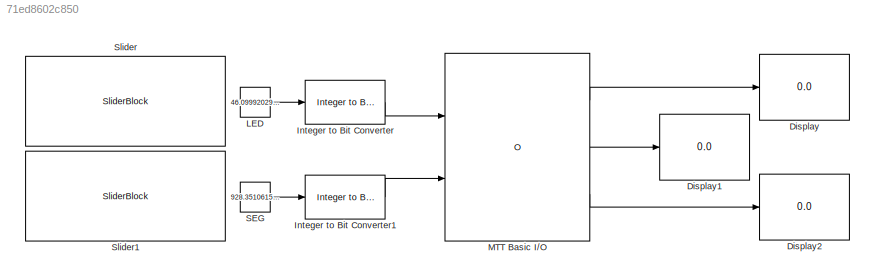
MODEL slx_71ed8602c850
KIND model
CONFIG AbsTol = auto
CONFIG EnableMultiTasking = off
CONFIG FixedStep = auto
CONFIG MaxStep = auto
CONFIG MinStep = auto
CONFIG RelTol = 1e-3
CONFIG SampleTimeConstraint = Unconstrained
CONFIG SolverName = FixedStepAuto
CONFIG StartTime = 0.0
CONFIG StopTime = inf
BLOCK [Display] Display
  Decimation = 1
  Ports = [1]
BLOCK [Display] Display1
  Decimation = 1
  Ports = [1]
BLOCK [Display] Display2
  Decimation = 1
  Ports = [1]
BLOCK [Reference] Integer to Bit Converter  REF=simulink/Logic and Bit
Operations/Integer to Bit
Converter
  Ports = [1, 1]
  SourceBlock = simulink/Logic and Bit\nOperations/Integer to Bit\nConverter
  SourceProductBaseCode = SL
  SourceType = Integer to Bit Converter
BLOCK [Reference] Integer to Bit Converter1  REF=simulink/Logic and Bit
Operations/Integer to Bit
Converter
  Ports = [1, 1]
  SourceBlock = simulink/Logic and Bit\nOperations/Integer to Bit\nConverter
  SourceProductBaseCode = SL
  SourceType = Integer to Bit Converter
BLOCK [Constant] LED
  OutDataTypeStr = uint8
  OutMax = [255]
  OutMin = [0]
  Value = 46.09992029563075
BLOCK [Reference] MTT Basic I//O  REF=mttlib/MTT Basic I//O  (lib defined in slx_4cbca21461f8)
  Ports = [2, 3]
  SourceBlock = mttlib/MTT Basic I//O
BLOCK [Constant] SEG
  OutDataTypeStr = uint16
  OutMax = [2047]
  OutMin = [0]
  Value = 928.3510615172813
BLOCK [SliderBlock] Slider
  ScaleMax = 255
BLOCK [SliderBlock] Slider1
  ScaleMax = 2047
LINE Integer to Bit Converter1:1 -> MTT Basic I//O:2
LINE Integer to Bit Converter:1 -> MTT Basic I//O:1
LINE LED:1 -> Integer to Bit Converter:1
LINE MTT Basic I//O:1 -> Display:1
LINE MTT Basic I//O:2 -> Display1:1
LINE MTT Basic I//O:3 -> Display2:1
LINE SEG:1 -> Integer to Bit Converter1:1
